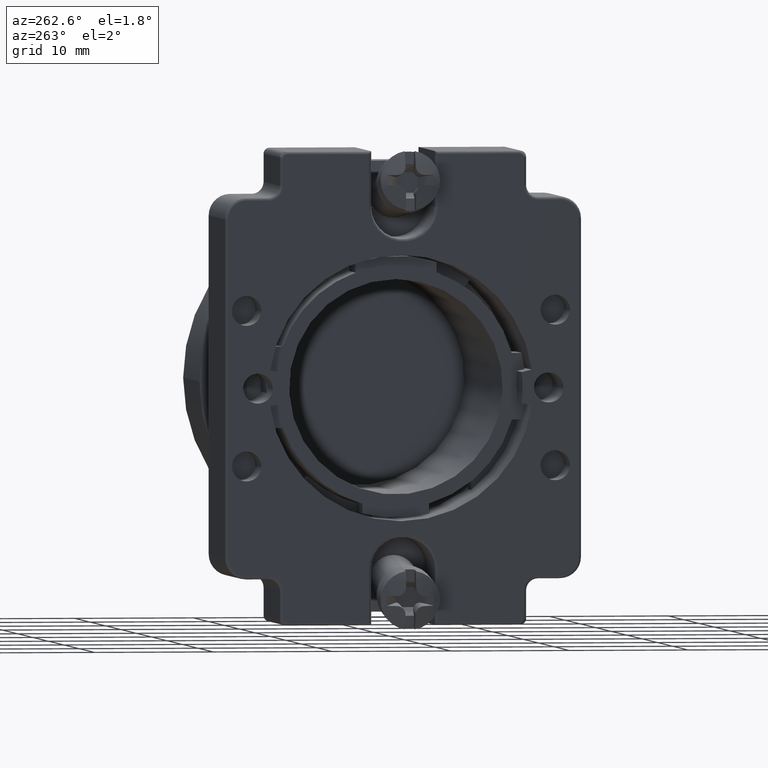
[diagram: clean part render]
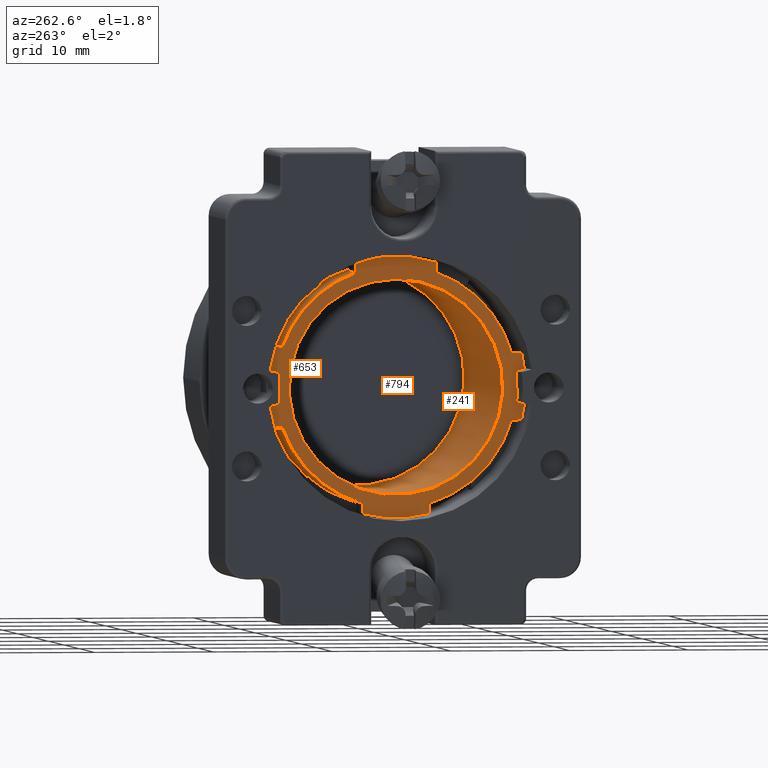
[diagram: same view with one multi-face feature highlighted, each face labeled with its STEP entity id]
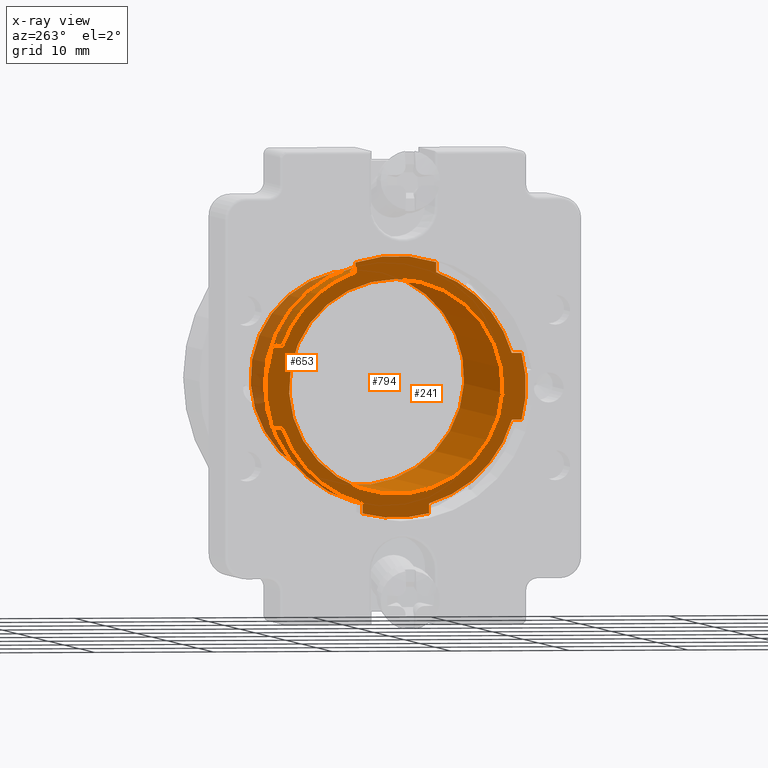
[diagram: x-ray of the same camera — body ghosted, the whole feature saturated]
A machine part, auxiliary view. The highlighted faces form ONE feature: a stepped (counterbored) hole: 2 coaxial cylindrical walls of radii 9 -> 10.15 mm joined by 1 annular planar shoulder face(s). The faces share edges in the B-rep.
The next image is the same camera in x-ray: the body ghosted and the whole hole feature saturated, so the bore chain is visible through the body.
Their STEP definitions:
[1] entity #653 (Cylinder):
#256=CARTESIAN_POINT('',(-20.101513745922897,-2.831685679495356,-9.756151905336450));
#257=VERTEX_POINT('',#256);
#266=CARTESIAN_POINT('',(-24.101513745922894,-2.831685679495356,-9.756151905336450));
#267=VERTEX_POINT('',#266);
#268=CARTESIAN_POINT('',(-24.101513745922894,-2.831685679495356,-9.756151905336450));
#269=DIRECTION('',(1.0,0.0,0.0));
#270=VECTOR('',#269,3.999999999999996);
#271=LINE('',#268,#270);
#272=EDGE_CURVE('',#267,#257,#271,.T.);
#298=CARTESIAN_POINT('',(-20.101513745922897,-9.787837584831806,-2.799999999999999));
#299=VERTEX_POINT('',#298);
#314=CARTESIAN_POINT('',(-24.101513745922894,-9.787837584831806,-2.799999999999999));
#315=VERTEX_POINT('',#314);
#322=CARTESIAN_POINT('',(-24.101513745922894,-9.787837584831806,-2.799999999999999));
#323=DIRECTION('',(1.0,0.0,0.0));
#324=VECTOR('',#323,3.999999999999996);
#325=LINE('',#322,#324);
#326=EDGE_CURVE('',#315,#299,#325,.T.);
#338=CARTESIAN_POINT('',(-20.101513745922897,2.768314320504643,-9.756151905336450));
#339=VERTEX_POINT('',#338);
#354=CARTESIAN_POINT('',(-24.101513745922894,2.768314320504643,-9.756151905336450));
#355=VERTEX_POINT('',#354);
#362=CARTESIAN_POINT('',(-24.101513745922894,2.768314320504643,-9.756151905336450));
#363=DIRECTION('',(1.0,0.0,0.0));
#364=VECTOR('',#363,3.999999999999996);
#365=LINE('',#362,#364);
#366=EDGE_CURVE('',#355,#339,#365,.T.);
#376=CARTESIAN_POINT('',(-20.101513745922897,9.531917198081693,-3.400000000000001));
#377=VERTEX_POINT('',#376);
#386=CARTESIAN_POINT('',(-24.101513745922894,9.531917198081693,-3.400000000000001));
#387=VERTEX_POINT('',#386);
#388=CARTESIAN_POINT('',(-24.101513745922894,9.531917198081693,-3.400000000000001));
#389=DIRECTION('',(1.0,0.0,0.0));
#390=VECTOR('',#389,3.999999999999996);
#391=LINE('',#388,#390);
#392=EDGE_CURVE('',#387,#377,#391,.T.);
#416=CARTESIAN_POINT('',(-20.101513745922897,-9.787837584831806,2.800000000000000));
#417=VERTEX_POINT('',#416);
#426=CARTESIAN_POINT('',(-24.101513745922894,-9.787837584831806,2.800000000000000));
#427=VERTEX_POINT('',#426);
#428=CARTESIAN_POINT('',(-24.101513745922894,-9.787837584831806,2.800000000000000));
#429=DIRECTION('',(1.0,0.0,0.0));
#430=VECTOR('',#429,3.999999999999996);
#431=LINE('',#428,#430);
#432=EDGE_CURVE('',#427,#417,#431,.T.);
#458=CARTESIAN_POINT('',(-20.101513745922897,-3.431685679495357,9.563602877577051));
#459=VERTEX_POINT('',#458);
#474=CARTESIAN_POINT('',(-24.101513745922894,-3.431685679495357,9.563602877577051));
#475=VERTEX_POINT('',#474);
#482=CARTESIAN_POINT('',(-24.101513745922894,-3.431685679495357,9.563602877577051));
#483=DIRECTION('',(1.0,0.0,0.0));
#484=VECTOR('',#483,3.999999999999996);
#485=LINE('',#482,#484);
#486=EDGE_CURVE('',#475,#459,#485,.T.);
#496=CARTESIAN_POINT('',(-20.101513745922897,3.368314320504643,9.563602877577051));
#497=VERTEX_POINT('',#496);
#506=CARTESIAN_POINT('',(-24.101513745922894,3.368314320504643,9.563602877577051));
#507=VERTEX_POINT('',#506);
#508=CARTESIAN_POINT('',(-24.101513745922894,3.368314320504643,9.563602877577051));
#509=DIRECTION('',(1.0,0.0,0.0));
#510=VECTOR('',#509,3.999999999999996);
#511=LINE('',#508,#510);
#512=EDGE_CURVE('',#507,#497,#511,.T.);
#538=CARTESIAN_POINT('',(-20.101513745922897,9.531917198081693,3.400000000000000));
#539=VERTEX_POINT('',#538);
#554=CARTESIAN_POINT('',(-24.101513745922894,9.531917198081693,3.400000000000000));
#555=VERTEX_POINT('',#554);
#562=CARTESIAN_POINT('',(-24.101513745922894,9.531917198081693,3.400000000000000));
#563=DIRECTION('',(1.0,0.0,0.0));
#564=VECTOR('',#563,3.999999999999996);
#565=LINE('',#562,#564);
#566=EDGE_CURVE('',#555,#539,#565,.T.);
#571=CARTESIAN_POINT('',(-18.676513745922897,-0.031685679495357,0.0));
#572=DIRECTION('',(1.0,-9.219481E-019,0.0));
#573=DIRECTION('',(0.0,1.0,0.0));
#574=AXIS2_PLACEMENT_3D('',#571,#572,#573);
#575=CYLINDRICAL_SURFACE('',#574,10.150000000000002);
#576=CARTESIAN_POINT('',(-17.251513745922896,10.118314320504645,0.0));
#577=VERTEX_POINT('',#576);
#578=CARTESIAN_POINT('',(-17.251513745922896,-0.031685679495357,0.0));
#579=DIRECTION('',(1.0,0.0,0.0));
#580=DIRECTION('',(0.0,1.0,0.0));
#581=AXIS2_PLACEMENT_3D('',#578,#579,#580);
#582=CIRCLE('',#581,10.150000000000002);
#583=EDGE_CURVE('',#577,#577,#582,.T.);
#584=ORIENTED_EDGE('',*,*,#583,.F.);
#585=EDGE_LOOP('',(#584));
#586=FACE_OUTER_BOUND('',#585,.T.);
#587=CARTESIAN_POINT('',(-20.101513745922897,-0.031685679495357,0.0));
#588=DIRECTION('',(1.0,0.0,0.0));
#589=DIRECTION('',(0.0,1.0,0.0));
#590=AXIS2_PLACEMENT_3D('',#587,#588,#589);
#591=CIRCLE('',#590,10.150000000000002);
#592=EDGE_CURVE('',#377,#539,#591,.T.);
#593=ORIENTED_EDGE('',*,*,#592,.T.);
#594=ORIENTED_EDGE('',*,*,#566,.F.);
#595=CARTESIAN_POINT('',(-24.101513745922894,-0.031685679495357,0.0));
#596=DIRECTION('',(-1.0,0.0,0.0));
#597=DIRECTION('',(0.0,0.0,-1.0));
#598=AXIS2_PLACEMENT_3D('',#595,#596,#597);
#599=CIRCLE('',#598,10.150000000000002);
#600=EDGE_CURVE('',#507,#555,#599,.T.);
#601=ORIENTED_EDGE('',*,*,#600,.F.);
#602=ORIENTED_EDGE('',*,*,#512,.T.);
#603=CARTESIAN_POINT('',(-20.101513745922897,-0.031685679495357,0.0));
#604=DIRECTION('',(1.0,0.0,0.0));
#605=DIRECTION('',(0.0,1.0,0.0));
#606=AXIS2_PLACEMENT_3D('',#603,#604,#605);
#607=CIRCLE('',#606,10.150000000000002);
#608=EDGE_CURVE('',#497,#459,#607,.T.);
#609=ORIENTED_EDGE('',*,*,#608,.T.);
#610=ORIENTED_EDGE('',*,*,#486,.F.);
#611=CARTESIAN_POINT('',(-24.101513745922894,-0.031685679495357,0.0));
#612=DIRECTION('',(-1.0,0.0,0.0));
#613=DIRECTION('',(0.0,0.0,-1.0));
#614=AXIS2_PLACEMENT_3D('',#611,#612,#613);
#615=CIRCLE('',#614,10.150000000000002);
#616=EDGE_CURVE('',#427,#475,#615,.T.);
#617=ORIENTED_EDGE('',*,*,#616,.F.);
#618=ORIENTED_EDGE('',*,*,#432,.T.);
#619=CARTESIAN_POINT('',(-20.101513745922897,-0.031685679495357,0.0));
#620=DIRECTION('',(1.0,0.0,0.0));
#621=DIRECTION('',(0.0,1.0,0.0));
#622=AXIS2_PLACEMENT_3D('',#619,#620,#621);
#623=CIRCLE('',#622,10.150000000000002);
#624=EDGE_CURVE('',#417,#299,#623,.T.);
#625=ORIENTED_EDGE('',*,*,#624,.T.);
#626=ORIENTED_EDGE('',*,*,#326,.F.);
#627=CARTESIAN_POINT('',(-24.101513745922894,-0.031685679495357,0.0));
#628=DIRECTION('',(-1.0,0.0,0.0));
#629=DIRECTION('',(0.0,0.0,-1.0));
#630=AXIS2_PLACEMENT_3D('',#627,#628,#629);
#631=CIRCLE('',#630,10.150000000000002);
#632=EDGE_CURVE('',#267,#315,#631,.T.);
#633=ORIENTED_EDGE('',*,*,#632,.F.);
#634=ORIENTED_EDGE('',*,*,#272,.T.);
#635=CARTESIAN_POINT('',(-20.101513745922897,-0.031685679495357,0.0));
#636=DIRECTION('',(1.0,0.0,0.0));
#637=DIRECTION('',(0.0,1.0,0.0));
#638=AXIS2_PLACEMENT_3D('',#635,#636,#637);
#639=CIRCLE('',#638,10.150000000000002);
#640=EDGE_CURVE('',#257,#339,#639,.T.);
#641=ORIENTED_EDGE('',*,*,#640,.T.);
#642=ORIENTED_EDGE('',*,*,#366,.F.);
#643=CARTESIAN_POINT('',(-24.101513745922894,-0.031685679495357,0.0));
#644=DIRECTION('',(-1.0,0.0,0.0));
#645=DIRECTION('',(0.0,0.0,-1.0));
#646=AXIS2_PLACEMENT_3D('',#643,#644,#645);
#647=CIRCLE('',#646,10.150000000000002);
#648=EDGE_CURVE('',#387,#355,#647,.T.);
#649=ORIENTED_EDGE('',*,*,#648,.F.);
#650=ORIENTED_EDGE('',*,*,#392,.T.);
#651=EDGE_LOOP('',(#593,#594,#601,#602,#609,#610,#617,#618,#625,#626,#633,#634,#641,#642,#649,#650));
#652=FACE_BOUND('',#651,.T.);
#653=ADVANCED_FACE('',(#586,#652),#575,.T.);
[2] entity #241 (Cylinder):
#214=CARTESIAN_POINT('',(-24.101513745922894,-0.031685679495357,0.0));
#215=DIRECTION('',(1.0,-8.673617E-019,0.0));
#216=DIRECTION('',(0.0,0.0,-1.0));
#217=AXIS2_PLACEMENT_3D('',#214,#215,#216);
#218=CYLINDRICAL_SURFACE('',#217,9.0);
#219=CARTESIAN_POINT('',(0.898486254077104,-0.031685679495356,9.0));
#220=VERTEX_POINT('',#219);
#221=CARTESIAN_POINT('',(0.898486254077104,-0.031685679495357,0.0));
#222=DIRECTION('',(-1.0,0.0,0.0));
#223=DIRECTION('',(0.0,0.0,-1.0));
#224=AXIS2_PLACEMENT_3D('',#221,#222,#223);
#225=CIRCLE('',#224,9.0);
#226=EDGE_CURVE('',#220,#220,#225,.T.);
#227=ORIENTED_EDGE('',*,*,#226,.F.);
#228=EDGE_LOOP('',(#227));
#229=FACE_OUTER_BOUND('',#228,.T.);
#230=CARTESIAN_POINT('',(-24.101513745922894,-0.031685679495356,9.0));
#231=VERTEX_POINT('',#230);
#232=CARTESIAN_POINT('',(-24.101513745922894,-0.031685679495357,0.0));
#233=DIRECTION('',(1.0,0.0,0.0));
#234=DIRECTION('',(0.0,0.0,-1.0));
#235=AXIS2_PLACEMENT_3D('',#232,#233,#234);
#236=CIRCLE('',#235,9.0);
#237=EDGE_CURVE('',#231,#231,#236,.T.);
#238=ORIENTED_EDGE('',*,*,#237,.F.);
#239=EDGE_LOOP('',(#238));
#240=FACE_BOUND('',#239,.T.);
#241=ADVANCED_FACE('',(#229,#240),#218,.F.);
[3] entity #794 (Plane):
#230=CARTESIAN_POINT('',(-24.101513745922894,-0.031685679495356,9.0));
#231=VERTEX_POINT('',#230);
#232=CARTESIAN_POINT('',(-24.101513745922894,-0.031685679495357,0.0));
#233=DIRECTION('',(1.0,0.0,0.0));
#234=DIRECTION('',(0.0,0.0,-1.0));
#235=AXIS2_PLACEMENT_3D('',#232,#233,#234);
#236=CIRCLE('',#235,9.0);
#237=EDGE_CURVE('',#231,#231,#236,.T.);
#266=CARTESIAN_POINT('',(-24.101513745922894,-2.831685679495356,-9.756151905336450));
#267=VERTEX_POINT('',#266);
#274=CARTESIAN_POINT('',(-24.101513745922894,-2.831685679495356,-10.585957679870059));
#275=VERTEX_POINT('',#274);
#276=CARTESIAN_POINT('',(-24.101513745922894,-2.831685679495356,-10.585957679870059));
#277=DIRECTION('',(0.0,0.0,1.0));
#278=VECTOR('',#277,0.829805774533609);
#279=LINE('',#276,#278);
#280=EDGE_CURVE('',#275,#267,#279,.T.);
#306=CARTESIAN_POINT('',(-24.101513745922894,-10.617643359365417,-2.799999999999999));
#307=VERTEX_POINT('',#306);
#314=CARTESIAN_POINT('',(-24.101513745922894,-9.787837584831806,-2.799999999999999));
#315=VERTEX_POINT('',#314);
#316=CARTESIAN_POINT('',(-24.101513745922894,-9.787837584831806,-2.799999999999999));
#317=DIRECTION('',(0.0,-1.0,0.0));
#318=VECTOR('',#317,0.829805774533611);
#319=LINE('',#316,#318);
#320=EDGE_CURVE('',#315,#307,#319,.T.);
#346=CARTESIAN_POINT('',(-24.101513745922894,2.768314320504643,-10.585957679870059));
#347=VERTEX_POINT('',#346);
#354=CARTESIAN_POINT('',(-24.101513745922894,2.768314320504643,-9.756151905336450));
#355=VERTEX_POINT('',#354);
#356=CARTESIAN_POINT('',(-24.101513745922894,2.768314320504643,-9.756151905336450));
#357=DIRECTION('',(0.0,0.0,-1.0));
#358=VECTOR('',#357,0.829805774533609);
#359=LINE('',#356,#358);
#360=EDGE_CURVE('',#355,#347,#359,.T.);
#386=CARTESIAN_POINT('',(-24.101513745922894,9.531917198081693,-3.400000000000001));
#387=VERTEX_POINT('',#386);
#394=CARTESIAN_POINT('',(-24.101513745922894,10.377084660943511,-3.400000000000001));
#395=VERTEX_POINT('',#394);
#396=CARTESIAN_POINT('',(-24.101513745922894,10.377084660943511,-3.400000000000001));
#397=DIRECTION('',(0.0,-1.0,0.0));
#398=VECTOR('',#397,0.845167462861818);
#399=LINE('',#396,#398);
#400=EDGE_CURVE('',#395,#387,#399,.T.);
#426=CARTESIAN_POINT('',(-24.101513745922894,-9.787837584831806,2.800000000000000));
#427=VERTEX_POINT('',#426);
#434=CARTESIAN_POINT('',(-24.101513745922894,-10.617643359365417,2.800000000000000));
#435=VERTEX_POINT('',#434);
#436=CARTESIAN_POINT('',(-24.101513745922894,-10.617643359365417,2.800000000000000));
#437=DIRECTION('',(0.0,1.0,0.0));
#438=VECTOR('',#437,0.829805774533611);
#439=LINE('',#436,#438);
#440=EDGE_CURVE('',#435,#427,#439,.T.);
#466=CARTESIAN_POINT('',(-24.101513745922894,-3.431685679495357,10.408770340438869));
#467=VERTEX_POINT('',#466);
#474=CARTESIAN_POINT('',(-24.101513745922894,-3.431685679495357,9.563602877577051));
#475=VERTEX_POINT('',#474);
#476=CARTESIAN_POINT('',(-24.101513745922894,-3.431685679495357,9.563602877577051));
#477=DIRECTION('',(0.0,0.0,1.0));
#478=VECTOR('',#477,0.845167462861818);
#479=LINE('',#476,#478);
#480=EDGE_CURVE('',#475,#467,#479,.T.);
#506=CARTESIAN_POINT('',(-24.101513745922894,3.368314320504643,9.563602877577051));
#507=VERTEX_POINT('',#506);
#514=CARTESIAN_POINT('',(-24.101513745922894,3.368314320504644,10.408770340438869));
#515=VERTEX_POINT('',#514);
#516=CARTESIAN_POINT('',(-24.101513745922894,3.368314320504644,10.408770340438869));
#517=DIRECTION('',(0.0,0.0,-1.0));
#518=VECTOR('',#517,0.845167462861818);
#519=LINE('',#516,#518);
#520=EDGE_CURVE('',#515,#507,#519,.T.);
#546=CARTESIAN_POINT('',(-24.101513745922894,10.377084660943511,3.400000000000000));
#547=VERTEX_POINT('',#546);
#554=CARTESIAN_POINT('',(-24.101513745922894,9.531917198081693,3.400000000000000));
#555=VERTEX_POINT('',#554);
#556=CARTESIAN_POINT('',(-24.101513745922894,9.531917198081693,3.400000000000000));
#557=DIRECTION('',(0.0,1.0,0.0));
#558=VECTOR('',#557,0.845167462861818);
#559=LINE('',#556,#558);
#560=EDGE_CURVE('',#555,#547,#559,.T.);
#595=CARTESIAN_POINT('',(-24.101513745922894,-0.031685679495357,0.0));
#596=DIRECTION('',(-1.0,0.0,0.0));
#597=DIRECTION('',(0.0,0.0,-1.0));
#598=AXIS2_PLACEMENT_3D('',#595,#596,#597);
#599=CIRCLE('',#598,10.150000000000002);
#600=EDGE_CURVE('',#507,#555,#599,.T.);
#611=CARTESIAN_POINT('',(-24.101513745922894,-0.031685679495357,0.0));
#612=DIRECTION('',(-1.0,0.0,0.0));
#613=DIRECTION('',(0.0,0.0,-1.0));
#614=AXIS2_PLACEMENT_3D('',#611,#612,#613);
#615=CIRCLE('',#614,10.150000000000002);
#616=EDGE_CURVE('',#427,#475,#615,.T.);
#627=CARTESIAN_POINT('',(-24.101513745922894,-0.031685679495357,0.0));
#628=DIRECTION('',(-1.0,0.0,0.0));
#629=DIRECTION('',(0.0,0.0,-1.0));
#630=AXIS2_PLACEMENT_3D('',#627,#628,#629);
#631=CIRCLE('',#630,10.150000000000002);
#632=EDGE_CURVE('',#267,#315,#631,.T.);
#643=CARTESIAN_POINT('',(-24.101513745922894,-0.031685679495357,0.0));
#644=DIRECTION('',(-1.0,0.0,0.0));
#645=DIRECTION('',(0.0,0.0,-1.0));
#646=AXIS2_PLACEMENT_3D('',#643,#644,#645);
#647=CIRCLE('',#646,10.150000000000002);
#648=EDGE_CURVE('',#387,#355,#647,.T.);
#716=CARTESIAN_POINT('',(-24.101513745922894,-0.031685679495357,0.0));
#717=DIRECTION('',(1.0,0.0,0.0));
#718=DIRECTION('',(0.0,1.0,0.0));
#719=AXIS2_PLACEMENT_3D('',#716,#717,#718);
#720=CIRCLE('',#719,10.949999999999996);
#721=EDGE_CURVE('',#515,#467,#720,.T.);
#732=CARTESIAN_POINT('',(-24.101513745922894,-0.031685679495357,0.0));
#733=DIRECTION('',(1.0,0.0,0.0));
#734=DIRECTION('',(0.0,1.0,0.0));
#735=AXIS2_PLACEMENT_3D('',#732,#733,#734);
#736=CIRCLE('',#735,10.949999999999996);
#737=EDGE_CURVE('',#275,#347,#736,.T.);
#750=CARTESIAN_POINT('',(-24.101513745922894,-0.031685679495357,0.0));
#751=DIRECTION('',(1.0,0.0,0.0));
#752=DIRECTION('',(0.0,1.0,0.0));
#753=AXIS2_PLACEMENT_3D('',#750,#751,#752);
#754=CIRCLE('',#753,10.949999999999996);
#755=EDGE_CURVE('',#395,#547,#754,.T.);
#762=CARTESIAN_POINT('',(-24.101513745922894,5.443314320504641,0.0));
#763=DIRECTION('',(-1.0,0.0,0.0));
#764=DIRECTION('',(0.0,0.0,1.0));
#765=AXIS2_PLACEMENT_3D('',#762,#763,#764);
#766=PLANE('',#765);
#767=ORIENTED_EDGE('',*,*,#320,.T.);
#768=CARTESIAN_POINT('',(-24.101513745922894,-0.031685679495357,0.0));
#769=DIRECTION('',(1.0,0.0,0.0));
#770=DIRECTION('',(0.0,1.0,0.0));
#771=AXIS2_PLACEMENT_3D('',#768,#769,#770);
#772=CIRCLE('',#771,10.949999999999996);
#773=EDGE_CURVE('',#435,#307,#772,.T.);
#774=ORIENTED_EDGE('',*,*,#773,.F.);
#775=ORIENTED_EDGE('',*,*,#440,.T.);
#776=ORIENTED_EDGE('',*,*,#616,.T.);
#777=ORIENTED_EDGE('',*,*,#480,.T.);
#778=ORIENTED_EDGE('',*,*,#721,.F.);
#779=ORIENTED_EDGE('',*,*,#520,.T.);
#780=ORIENTED_EDGE('',*,*,#600,.T.);
#781=ORIENTED_EDGE('',*,*,#560,.T.);
#782=ORIENTED_EDGE('',*,*,#755,.F.);
#783=ORIENTED_EDGE('',*,*,#400,.T.);
#784=ORIENTED_EDGE('',*,*,#648,.T.);
#785=ORIENTED_EDGE('',*,*,#360,.T.);
#786=ORIENTED_EDGE('',*,*,#737,.F.);
#787=ORIENTED_EDGE('',*,*,#280,.T.);
#788=ORIENTED_EDGE('',*,*,#632,.T.);
#789=EDGE_LOOP('',(#767,#774,#775,#776,#777,#778,#779,#780,#781,#782,#783,#784,#785,#786,#787,#788));
#790=FACE_OUTER_BOUND('',#789,.T.);
#791=ORIENTED_EDGE('',*,*,#237,.T.);
#792=EDGE_LOOP('',(#791));
#793=FACE_BOUND('',#792,.T.);
#794=ADVANCED_FACE('',(#790,#793),#766,.T.);